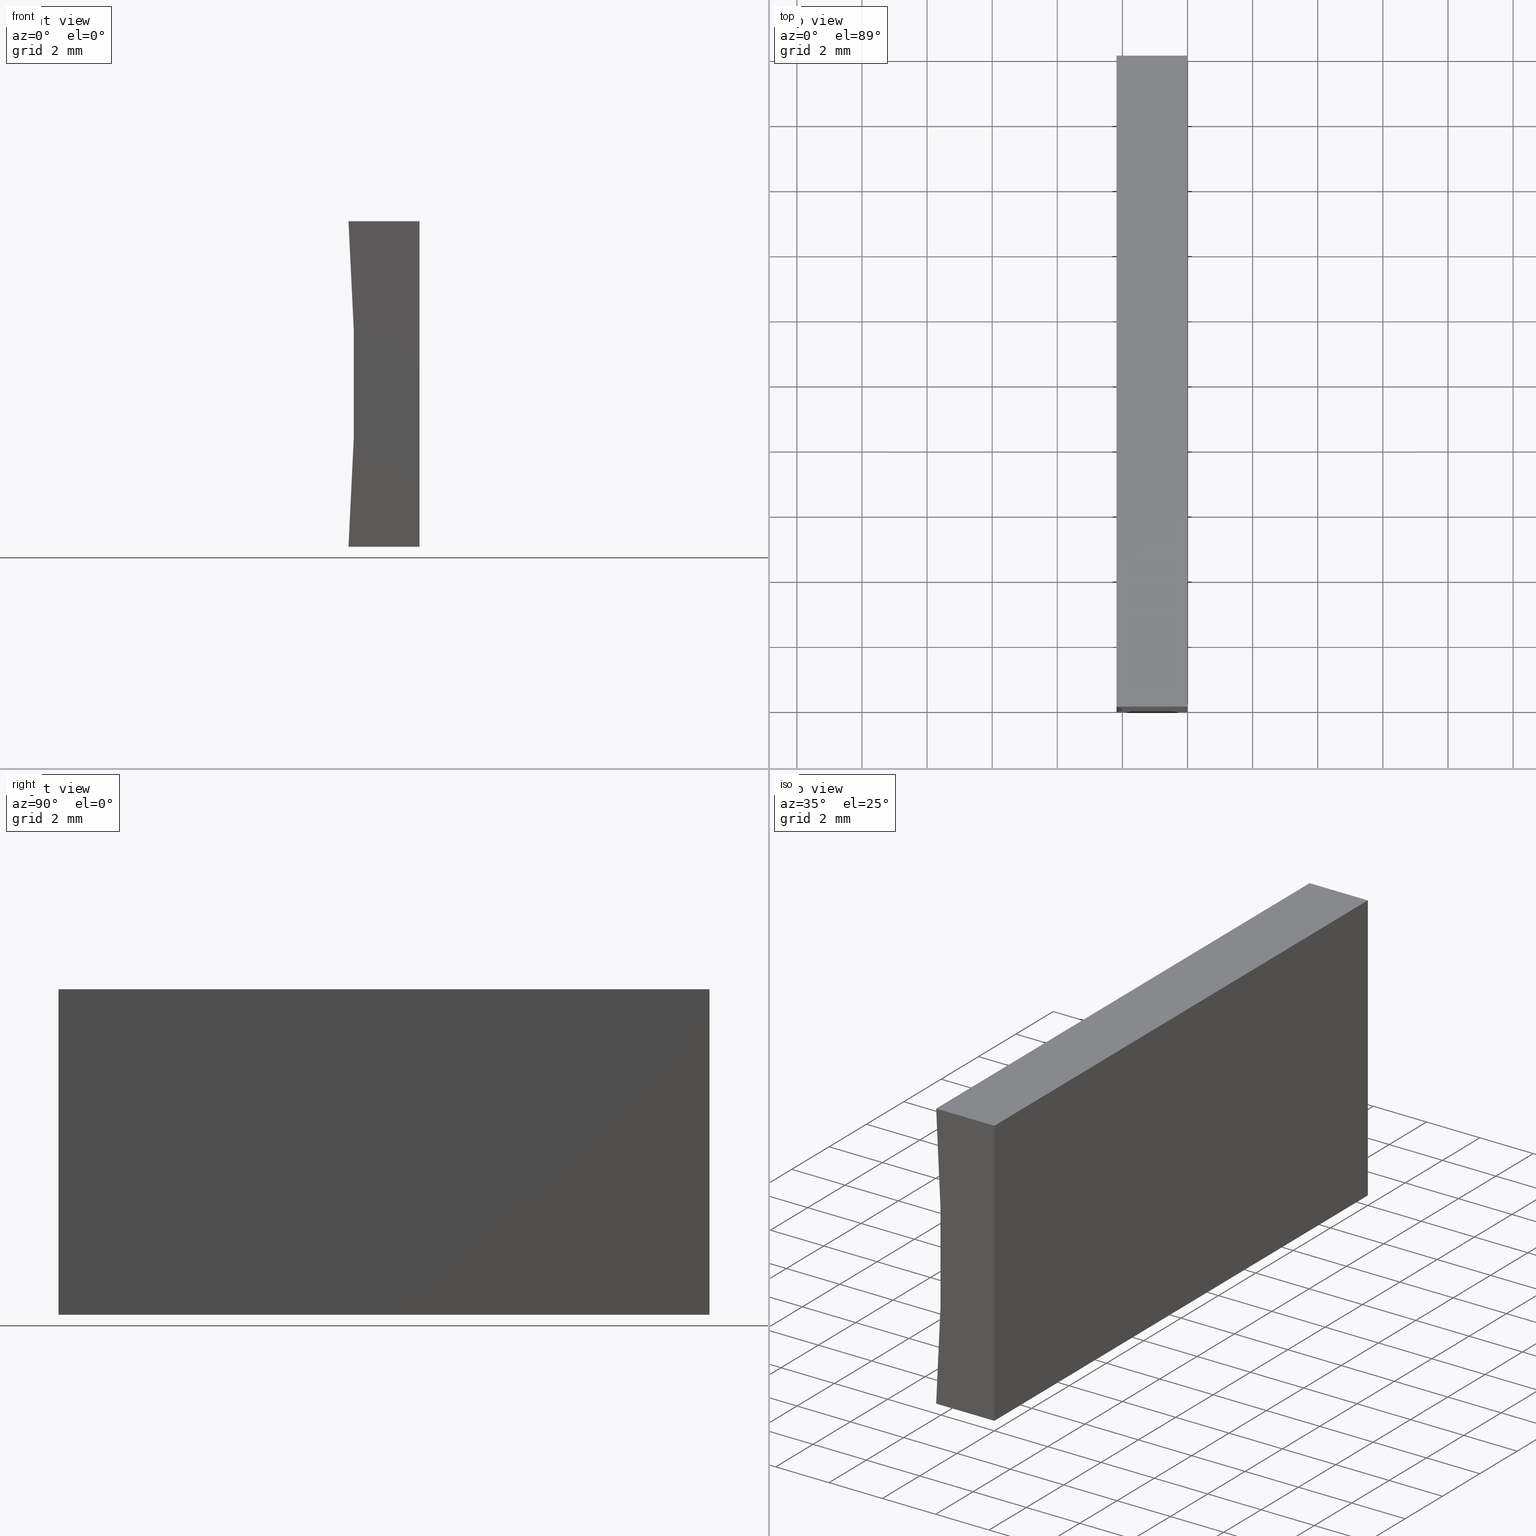
[diagram: canonical four-view strip — front | top / right | iso, engineering-drawing reading convention]
A machine part, canonical four-view strip (front | top / right | iso — engineering-drawing reading convention). The complete STEP part file that produces these views, byte-faithful:
ISO-10303-21;
HEADER;
FILE_DESCRIPTION (( 'STEP AP214' ),
    '1' );
FILE_NAME ('155482.STEP',
    '2019-07-03T07:55:56',
    ( 'user' ),
    ( '΢���й�' ),
    'SwSTEP 2.0',
    'SolidWorks 2016',
    '' );
FILE_SCHEMA (( 'AUTOMOTIVE_DESIGN' ));
ENDSEC;

DATA;
#1 = APPLICATION_CONTEXT ( 'automotive_design' ) ;
#2 = ORIENTED_EDGE ( 'NONE', *, *, #99, .T. ) ;
#3 = VERTEX_POINT ( 'NONE', #200 ) ;
#4 = ORIENTED_EDGE ( 'NONE', *, *, #131, .F. ) ;
#5 = PLANE ( 'NONE',  #196 ) ;
#6 = VERTEX_POINT ( 'NONE', #93 ) ;
#7 = LINE ( 'NONE', #157, #158 ) ;
#8 = DIRECTION ( 'NONE',  ( 0.0000000000000000000, -0.0000000000000000000, 1.000000000000000000 ) ) ;
#9 = AXIS2_PLACEMENT_3D ( 'NONE', #32, #89, #8 ) ;
#10 = EDGE_LOOP ( 'NONE', ( #21, #202, #4, #145 ) ) ;
#11 = CLOSED_SHELL ( 'NONE', ( #204, #190, #25, #35, #66, #140 ) ) ;
#12 = EDGE_CURVE ( 'NONE', #123, #3, #7, .T. ) ;
#13 = LINE ( 'NONE', #181, #43 ) ;
#14 = FILL_AREA_STYLE_COLOUR ( '', #64 ) ;
#15 = FACE_OUTER_BOUND ( 'NONE', #84, .T. ) ;
#16 = CARTESIAN_POINT ( 'NONE',  ( -70.78000000000001500, 0.0000000000000000000, 5.000000000000008000 ) ) ;
#17 =( LENGTH_UNIT ( ) NAMED_UNIT ( * ) SI_UNIT ( .MILLI., .METRE. ) );
#18 = CARTESIAN_POINT ( 'NONE',  ( 0.0000000000000000000, 0.0000000000000000000, 0.0000000000000000000 ) ) ;
#19 = SURFACE_STYLE_USAGE ( .BOTH. , #60 ) ;
#20 = EDGE_CURVE ( 'NONE', #123, #36, #28, .T. ) ;
#21 = ORIENTED_EDGE ( 'NONE', *, *, #162, .F. ) ;
#22 = SHAPE_DEFINITION_REPRESENTATION ( #138, #86 ) ;
#23 = CARTESIAN_POINT ( 'NONE',  ( 6.123233995736766300E-016, 20.00000000000000000, 10.00000000000000000 ) ) ;
#24 =( NAMED_UNIT ( * ) SI_UNIT ( $, .STERADIAN. ) SOLID_ANGLE_UNIT ( ) );
#25 = ADVANCED_FACE ( 'NONE', ( #37 ), #51, .F. ) ;
#26 =( GEOMETRIC_REPRESENTATION_CONTEXT ( 3 ) GLOBAL_UNCERTAINTY_ASSIGNED_CONTEXT ( ( #121 ) ) GLOBAL_UNIT_ASSIGNED_CONTEXT ( ( #65, #135, #24 ) ) REPRESENTATION_CONTEXT ( 'NONE', 'WORKASPACE' ) );
#27 = MANIFOLD_SOLID_BREP ( '͹̨-����1', #11 ) ;
#28 = LINE ( 'NONE', #180, #151 ) ;
#29 = ORIENTED_EDGE ( 'NONE', *, *, #169, .F. ) ;
#30 = DIRECTION ( 'NONE',  ( 0.0000000000000000000, 0.0000000000000000000, 1.000000000000000000 ) ) ;
#31 = CYLINDRICAL_SURFACE ( 'NONE', #70, 68.78000000000000100 ) ;
#32 = CARTESIAN_POINT ( 'NONE',  ( -70.78000000000001500, 20.00000000000000000, 5.000000000000008000 ) ) ;
#33 = AXIS2_PLACEMENT_3D ( 'NONE', #16, #87, #92 ) ;
#34 = PRODUCT ( '155482', '155482', '', ( #73 ) ) ;
#35 = ADVANCED_FACE ( 'NONE', ( #15 ), #5, .F. ) ;
#36 = VERTEX_POINT ( 'NONE', #195 ) ;
#37 = FACE_OUTER_BOUND ( 'NONE', #53, .T. ) ;
#38 = CARTESIAN_POINT ( 'NONE',  ( 6.123233995736766300E-016, 0.0000000000000000000, 10.00000000000000000 ) ) ;
#39 = VECTOR ( 'NONE', #171, 1000.000000000000000 ) ;
#40 = VECTOR ( 'NONE', #126, 1000.000000000000000 ) ;
#41 = EDGE_CURVE ( 'NONE', #3, #6, #91, .T. ) ;
#42 = CARTESIAN_POINT ( 'NONE',  ( -2.181979620400120300, 20.00000000000000000, 10.00000000000000000 ) ) ;
#43 = VECTOR ( 'NONE', #76, 1000.000000000000000 ) ;
#44 = LINE ( 'NONE', #164, #40 ) ;
#45 = FACE_OUTER_BOUND ( 'NONE', #57, .T. ) ;
#46 = SURFACE_STYLE_FILL_AREA ( #80 ) ;
#47 = DIRECTION ( 'NONE',  ( 0.0000000000000000000, 0.0000000000000000000, 1.000000000000000000 ) ) ;
#48 = CARTESIAN_POINT ( 'NONE',  ( 0.0000000000000000000, 0.0000000000000000000, 0.0000000000000000000 ) ) ;
#49 = LINE ( 'NONE', #193, #184 ) ;
#50 = STYLED_ITEM ( 'NONE', ( #104 ), #86 ) ;
#51 = PLANE ( 'NONE',  #85 ) ;
#52 = ORIENTED_EDGE ( 'NONE', *, *, #141, .F. ) ;
#53 = EDGE_LOOP ( 'NONE', ( #109, #183, #201, #94 ) ) ;
#54 = AXIS2_PLACEMENT_3D ( 'NONE', #172, #149, #30 ) ;
#55 = LINE ( 'NONE', #115, #189 ) ;
#56 = PRODUCT_DEFINITION ( 'δ֪', '', #74, #98 ) ;
#57 = EDGE_LOOP ( 'NONE', ( #144, #52, #113, #2 ) ) ;
#58 = DIRECTION ( 'NONE',  ( -1.000000000000000000, 0.0000000000000000000, 6.123233995736766000E-017 ) ) ;
#59 = VECTOR ( 'NONE', #188, 1000.000000000000000 ) ;
#60 = SURFACE_SIDE_STYLE ('',( #46 ) ) ;
#61 = DIRECTION ( 'NONE',  ( -1.000000000000000000, 0.0000000000000000000, 0.0000000000000000000 ) ) ;
#62 = DIRECTION ( 'NONE',  ( 6.123233995736766000E-017, 0.0000000000000000000, 1.000000000000000000 ) ) ;
#63 = VECTOR ( 'NONE', #133, 1000.000000000000000 ) ;
#64 = COLOUR_RGB ( '',1.000000000000000000, 1.000000000000000000, 1.000000000000000000 ) ;
#65 =( LENGTH_UNIT ( ) NAMED_UNIT ( * ) SI_UNIT ( .MILLI., .METRE. ) );
#66 = ADVANCED_FACE ( 'NONE', ( #148 ), #174, .T. ) ;
#67 = FACE_OUTER_BOUND ( 'NONE', #143, .T. ) ;
#68 = AXIS2_PLACEMENT_3D ( 'NONE', #191, #152, #120 ) ;
#69 = VERTEX_POINT ( 'NONE', #168 ) ;
#70 = AXIS2_PLACEMENT_3D ( 'NONE', #124, #78, #101 ) ;
#71 = ORIENTED_EDGE ( 'NONE', *, *, #12, .F. ) ;
#72 = PRESENTATION_STYLE_ASSIGNMENT (( #132 ) ) ;
#73 = PRODUCT_CONTEXT ( 'NONE', #97, 'mechanical' ) ;
#74 = PRODUCT_DEFINITION_FORMATION_WITH_SPECIFIED_SOURCE ( '�κ�', '', #34, .NOT_KNOWN. ) ;
#75 = CARTESIAN_POINT ( 'NONE',  ( -2.181979620400120700, 0.0000000000000000000, 4.336808689942017700E-015 ) ) ;
#76 = DIRECTION ( 'NONE',  ( -6.123233995736766000E-017, -0.0000000000000000000, -1.000000000000000000 ) ) ;
#77 = VERTEX_POINT ( 'NONE', #48 ) ;
#78 = DIRECTION ( 'NONE',  ( -0.0000000000000000000, -1.000000000000000000, -0.0000000000000000000 ) ) ;
#79 = DIRECTION ( 'NONE',  ( 1.000000000000000000, 0.0000000000000000000, 0.0000000000000000000 ) ) ;
#80 = FILL_AREA_STYLE ('',( #156 ) ) ;
#81 = AXIS2_PLACEMENT_3D ( 'NONE', #18, #47, #79 ) ;
#82 = ORIENTED_EDGE ( 'NONE', *, *, #99, .F. ) ;
#83 = APPLICATION_PROTOCOL_DEFINITION ( 'draft international standard', 'automotive_design', 1998, #97 ) ;
#84 = EDGE_LOOP ( 'NONE', ( #177, #82, #71, #199 ) ) ;
#85 = AXIS2_PLACEMENT_3D ( 'NONE', #23, #179, #105 ) ;
#86 = ADVANCED_BREP_SHAPE_REPRESENTATION ( '155482', ( #27, #81 ), #160 ) ;
#87 = DIRECTION ( 'NONE',  ( 0.0000000000000000000, 1.000000000000000000, 0.0000000000000000000 ) ) ;
#88 = EDGE_CURVE ( 'NONE', #110, #123, #55, .T. ) ;
#89 = DIRECTION ( 'NONE',  ( 0.0000000000000000000, 1.000000000000000000, 0.0000000000000000000 ) ) ;
#90 = DIRECTION ( 'NONE',  ( -0.0000000000000000000, -1.000000000000000000, -0.0000000000000000000 ) ) ;
#91 = LINE ( 'NONE', #163, #116 ) ;
#92 = DIRECTION ( 'NONE',  ( 0.0000000000000000000, -0.0000000000000000000, 1.000000000000000000 ) ) ;
#93 = CARTESIAN_POINT ( 'NONE',  ( -2.181979620400120700, 20.00000000000000000, 4.336808689942017700E-015 ) ) ;
#94 = ORIENTED_EDGE ( 'NONE', *, *, #169, .T. ) ;
#95 = COLOUR_RGB ( '',1.000000000000000000, 1.000000000000000000, 1.000000000000000000 ) ;
#96 = ORIENTED_EDGE ( 'NONE', *, *, #112, .F. ) ;
#97 = APPLICATION_CONTEXT ( 'automotive_design' ) ;
#98 = PRODUCT_DEFINITION_CONTEXT ( 'detailed design', #1, 'design' ) ;
#99 = EDGE_CURVE ( 'NONE', #3, #77, #129, .T. ) ;
#100 = UNCERTAINTY_MEASURE_WITH_UNIT (LENGTH_MEASURE( 1.000000000000000100E-005 ), #17, 'distance_accuracy_value', 'NONE');
#101 = DIRECTION ( 'NONE',  ( 0.0000000000000000000, 0.0000000000000000000, -1.000000000000000000 ) ) ;
#102 = ORIENTED_EDGE ( 'NONE', *, *, #112, .T. ) ;
#103 = DIRECTION ( 'NONE',  ( 1.000000000000000000, -0.0000000000000000000, -0.0000000000000000000 ) ) ;
#104 = PRESENTATION_STYLE_ASSIGNMENT (( #19 ) ) ;
#105 = DIRECTION ( 'NONE',  ( -1.000000000000000000, 0.0000000000000000000, -0.0000000000000000000 ) ) ;
#106 = PLANE ( 'NONE',  #68 ) ;
#107 = DIRECTION ( 'NONE',  ( 0.0000000000000000000, 0.0000000000000000000, 1.000000000000000000 ) ) ;
#108 = ORIENTED_EDGE ( 'NONE', *, *, #159, .T. ) ;
#109 = ORIENTED_EDGE ( 'NONE', *, *, #131, .T. ) ;
#110 = VERTEX_POINT ( 'NONE', #42 ) ;
#111 = PLANE ( 'NONE',  #33 ) ;
#112 = EDGE_CURVE ( 'NONE', #6, #110, #114, .T. ) ;
#113 = ORIENTED_EDGE ( 'NONE', *, *, #41, .F. ) ;
#114 = CIRCLE ( 'NONE', #54, 68.78000000000000100 ) ;
#115 = CARTESIAN_POINT ( 'NONE',  ( 6.123233995736766300E-016, 20.00000000000000000, 10.00000000000000000 ) ) ;
#116 = VECTOR ( 'NONE', #61, 1000.000000000000000 ) ;
#117 = PRODUCT_RELATED_PRODUCT_CATEGORY ( 'part', '', ( #34 ) ) ;
#118 = EDGE_CURVE ( 'NONE', #36, #77, #13, .T. ) ;
#119 = VERTEX_POINT ( 'NONE', #75 ) ;
#120 = DIRECTION ( 'NONE',  ( 1.000000000000000000, 0.0000000000000000000, -0.0000000000000000000 ) ) ;
#121 = UNCERTAINTY_MEASURE_WITH_UNIT (LENGTH_MEASURE( 1.000000000000000100E-005 ), #65, 'distance_accuracy_value', 'NONE');
#122 = CARTESIAN_POINT ( 'NONE',  ( 0.0000000000000000000, 20.00000000000000000, 0.0000000000000000000 ) ) ;
#123 = VERTEX_POINT ( 'NONE', #186 ) ;
#124 = CARTESIAN_POINT ( 'NONE',  ( -70.78000000000001500, 20.00000000000000000, 5.000000000000008000 ) ) ;
#125 = LINE ( 'NONE', #139, #39 ) ;
#126 = DIRECTION ( 'NONE',  ( -1.000000000000000000, 0.0000000000000000000, 0.0000000000000000000 ) ) ;
#127 = STYLED_ITEM ( 'NONE', ( #72 ), #27 ) ;
#128 = MECHANICAL_DESIGN_GEOMETRIC_PRESENTATION_REPRESENTATION (  '', ( #127 ), #142 ) ;
#129 = LINE ( 'NONE', #170, #63 ) ;
#130 = ORIENTED_EDGE ( 'NONE', *, *, #141, .T. ) ;
#131 = EDGE_CURVE ( 'NONE', #69, #36, #192, .T. ) ;
#132 = SURFACE_STYLE_USAGE ( .BOTH. , #173 ) ;
#133 = DIRECTION ( 'NONE',  ( -0.0000000000000000000, -1.000000000000000000, -0.0000000000000000000 ) ) ;
#134 = PRESENTATION_LAYER_ASSIGNMENT (  '', '', ( #127 ) ) ;
#135 =( NAMED_UNIT ( * ) PLANE_ANGLE_UNIT ( ) SI_UNIT ( $, .RADIAN. ) );
#136 =( LENGTH_UNIT ( ) NAMED_UNIT ( * ) SI_UNIT ( .MILLI., .METRE. ) );
#137 = SURFACE_STYLE_FILL_AREA ( #194 ) ;
#138 = PRODUCT_DEFINITION_SHAPE ( 'NONE', 'NONE',  #56 ) ;
#139 = CARTESIAN_POINT ( 'NONE',  ( -2.181979620400120300, 20.00000000000000000, 10.00000000000000000 ) ) ;
#140 = ADVANCED_FACE ( 'NONE', ( #203 ), #111, .F. ) ;
#141 = EDGE_CURVE ( 'NONE', #6, #119, #49, .T. ) ;
#142 =( GEOMETRIC_REPRESENTATION_CONTEXT ( 3 ) GLOBAL_UNCERTAINTY_ASSIGNED_CONTEXT ( ( #153 ) ) GLOBAL_UNIT_ASSIGNED_CONTEXT ( ( #136, #178, #187 ) ) REPRESENTATION_CONTEXT ( 'NONE', 'WORKASPACE' ) );
#143 = EDGE_LOOP ( 'NONE', ( #108, #29, #96, #130 ) ) ;
#144 = ORIENTED_EDGE ( 'NONE', *, *, #162, .T. ) ;
#145 = ORIENTED_EDGE ( 'NONE', *, *, #159, .F. ) ;
#146 = MECHANICAL_DESIGN_GEOMETRIC_PRESENTATION_REPRESENTATION (  '', ( #50 ), #26 ) ;
#147 = DIRECTION ( 'NONE',  ( -0.0000000000000000000, -1.000000000000000000, -0.0000000000000000000 ) ) ;
#148 = FACE_OUTER_BOUND ( 'NONE', #154, .T. ) ;
#149 = DIRECTION ( 'NONE',  ( -0.0000000000000000000, -1.000000000000000000, -0.0000000000000000000 ) ) ;
#150 = APPLICATION_PROTOCOL_DEFINITION ( 'draft international standard', 'automotive_design', 1998, #1 ) ;
#151 = VECTOR ( 'NONE', #147, 1000.000000000000000 ) ;
#152 = DIRECTION ( 'NONE',  ( 0.0000000000000000000, -0.0000000000000000000, 1.000000000000000000 ) ) ;
#153 = UNCERTAINTY_MEASURE_WITH_UNIT (LENGTH_MEASURE( 1.000000000000000100E-005 ), #136, 'distance_accuracy_value', 'NONE');
#154 = EDGE_LOOP ( 'NONE', ( #185, #102, #165, #161 ) ) ;
#155 =( NAMED_UNIT ( * ) PLANE_ANGLE_UNIT ( ) SI_UNIT ( $, .RADIAN. ) );
#156 = FILL_AREA_STYLE_COLOUR ( '', #95 ) ;
#157 = CARTESIAN_POINT ( 'NONE',  ( 0.0000000000000000000, 20.00000000000000000, 0.0000000000000000000 ) ) ;
#158 = VECTOR ( 'NONE', #197, 1000.000000000000000 ) ;
#159 = EDGE_CURVE ( 'NONE', #119, #69, #198, .T. ) ;
#160 =( GEOMETRIC_REPRESENTATION_CONTEXT ( 3 ) GLOBAL_UNCERTAINTY_ASSIGNED_CONTEXT ( ( #100 ) ) GLOBAL_UNIT_ASSIGNED_CONTEXT ( ( #17, #155, #176 ) ) REPRESENTATION_CONTEXT ( 'NONE', 'WORKASPACE' ) );
#161 = ORIENTED_EDGE ( 'NONE', *, *, #12, .T. ) ;
#162 = EDGE_CURVE ( 'NONE', #77, #119, #44, .T. ) ;
#163 = CARTESIAN_POINT ( 'NONE',  ( 0.0000000000000000000, 20.00000000000000000, 0.0000000000000000000 ) ) ;
#164 = CARTESIAN_POINT ( 'NONE',  ( 0.0000000000000000000, 0.0000000000000000000, 0.0000000000000000000 ) ) ;
#165 = ORIENTED_EDGE ( 'NONE', *, *, #88, .T. ) ;
#166 = DIRECTION ( 'NONE',  ( -0.0000000000000000000, -1.000000000000000000, -0.0000000000000000000 ) ) ;
#167 = AXIS2_PLACEMENT_3D ( 'NONE', #182, #166, #107 ) ;
#168 = CARTESIAN_POINT ( 'NONE',  ( -2.181979620400120300, 0.0000000000000000000, 10.00000000000000000 ) ) ;
#169 = EDGE_CURVE ( 'NONE', #110, #69, #125, .T. ) ;
#170 = CARTESIAN_POINT ( 'NONE',  ( 0.0000000000000000000, 20.00000000000000000, 0.0000000000000000000 ) ) ;
#171 = DIRECTION ( 'NONE',  ( -0.0000000000000000000, -1.000000000000000000, -0.0000000000000000000 ) ) ;
#172 = CARTESIAN_POINT ( 'NONE',  ( -70.78000000000001500, 20.00000000000000000, 5.000000000000008000 ) ) ;
#173 = SURFACE_SIDE_STYLE ('',( #137 ) ) ;
#174 = PLANE ( 'NONE',  #9 ) ;
#175 = PRESENTATION_LAYER_ASSIGNMENT (  '', '', ( #50 ) ) ;
#176 =( NAMED_UNIT ( * ) SI_UNIT ( $, .STERADIAN. ) SOLID_ANGLE_UNIT ( ) );
#177 = ORIENTED_EDGE ( 'NONE', *, *, #118, .T. ) ;
#178 =( NAMED_UNIT ( * ) PLANE_ANGLE_UNIT ( ) SI_UNIT ( $, .RADIAN. ) );
#179 = DIRECTION ( 'NONE',  ( 0.0000000000000000000, 0.0000000000000000000, -1.000000000000000000 ) ) ;
#180 = CARTESIAN_POINT ( 'NONE',  ( 6.123233995736766300E-016, 20.00000000000000000, 10.00000000000000000 ) ) ;
#181 = CARTESIAN_POINT ( 'NONE',  ( 0.0000000000000000000, 0.0000000000000000000, 0.0000000000000000000 ) ) ;
#182 = CARTESIAN_POINT ( 'NONE',  ( -70.78000000000001500, 0.0000000000000000000, 5.000000000000008000 ) ) ;
#183 = ORIENTED_EDGE ( 'NONE', *, *, #20, .F. ) ;
#184 = VECTOR ( 'NONE', #90, 1000.000000000000000 ) ;
#185 = ORIENTED_EDGE ( 'NONE', *, *, #41, .T. ) ;
#186 = CARTESIAN_POINT ( 'NONE',  ( 6.123233995736766300E-016, 20.00000000000000000, 10.00000000000000000 ) ) ;
#187 =( NAMED_UNIT ( * ) SI_UNIT ( $, .STERADIAN. ) SOLID_ANGLE_UNIT ( ) );
#188 = DIRECTION ( 'NONE',  ( 1.000000000000000000, -0.0000000000000000000, -0.0000000000000000000 ) ) ;
#189 = VECTOR ( 'NONE', #103, 1000.000000000000000 ) ;
#190 = ADVANCED_FACE ( 'NONE', ( #67 ), #31, .F. ) ;
#191 = CARTESIAN_POINT ( 'NONE',  ( 0.0000000000000000000, 20.00000000000000000, 0.0000000000000000000 ) ) ;
#192 = LINE ( 'NONE', #38, #59 ) ;
#193 = CARTESIAN_POINT ( 'NONE',  ( -2.181979620400120700, 20.00000000000000000, 4.336808689942017700E-015 ) ) ;
#194 = FILL_AREA_STYLE ('',( #14 ) ) ;
#195 = CARTESIAN_POINT ( 'NONE',  ( 6.123233995736766300E-016, 0.0000000000000000000, 10.00000000000000000 ) ) ;
#196 = AXIS2_PLACEMENT_3D ( 'NONE', #122, #58, #62 ) ;
#197 = DIRECTION ( 'NONE',  ( -6.123233995736766000E-017, -0.0000000000000000000, -1.000000000000000000 ) ) ;
#198 = CIRCLE ( 'NONE', #167, 68.78000000000000100 ) ;
#199 = ORIENTED_EDGE ( 'NONE', *, *, #20, .T. ) ;
#200 = CARTESIAN_POINT ( 'NONE',  ( 0.0000000000000000000, 20.00000000000000000, 0.0000000000000000000 ) ) ;
#201 = ORIENTED_EDGE ( 'NONE', *, *, #88, .F. ) ;
#202 = ORIENTED_EDGE ( 'NONE', *, *, #118, .F. ) ;
#203 = FACE_OUTER_BOUND ( 'NONE', #10, .T. ) ;
#204 = ADVANCED_FACE ( 'NONE', ( #45 ), #106, .F. ) ;
ENDSEC;
END-ISO-10303-21;
